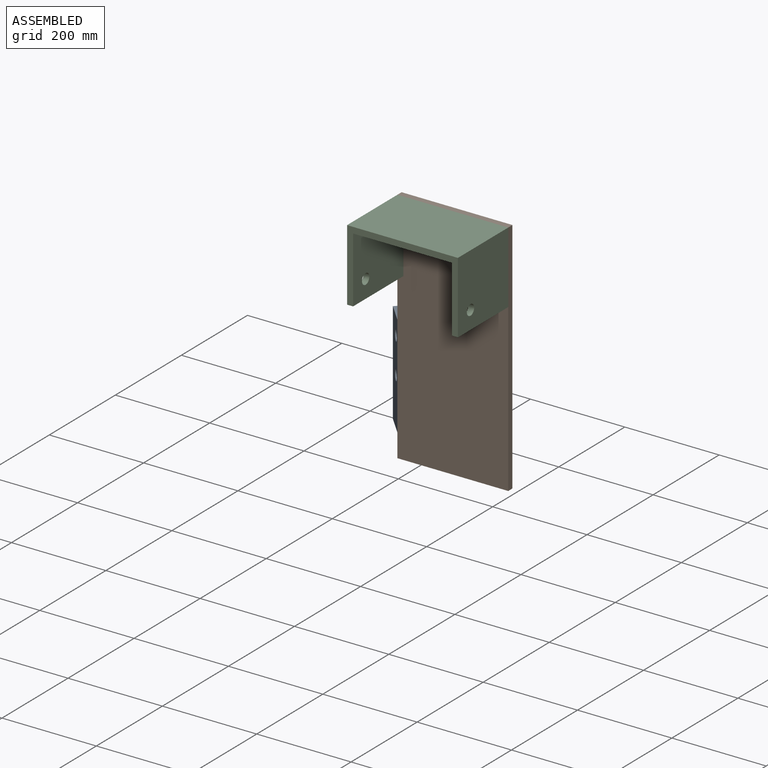
[diagram: assembled view]
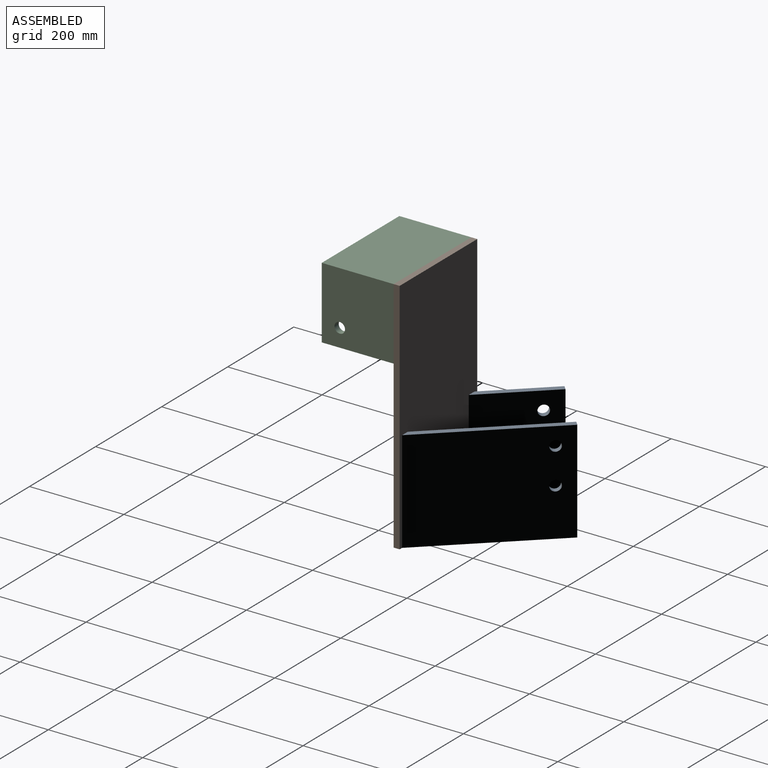
[diagram: assembled view, second angle]
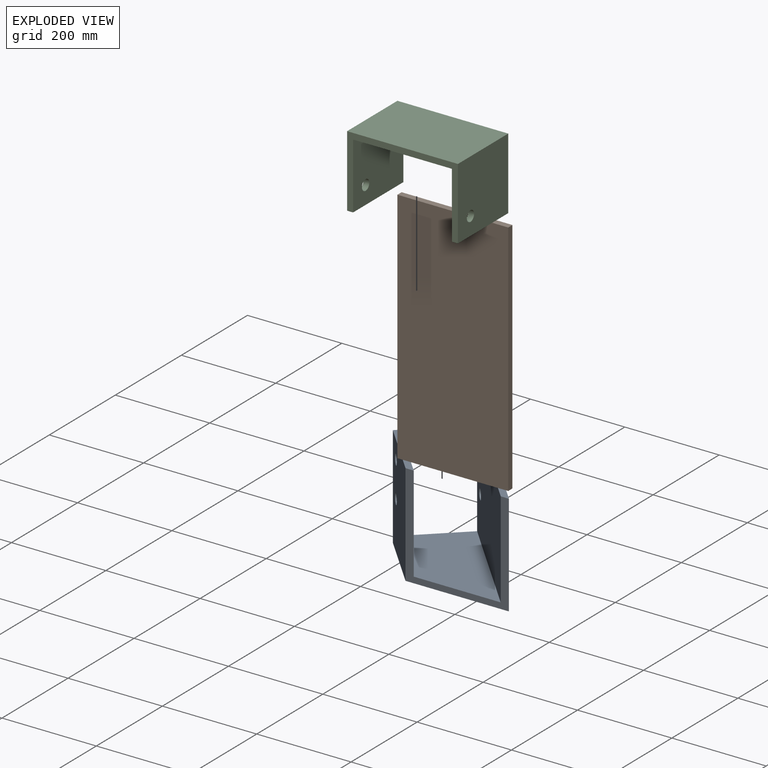
[diagram: exploded view]
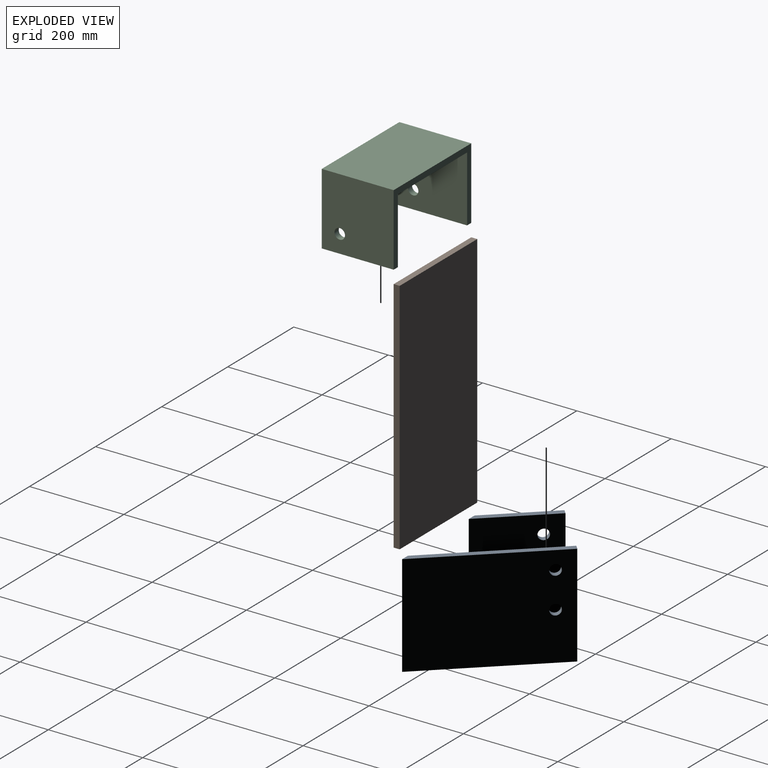
[diagram: exploded view, second angle]
ASSEMBLY  parts=3 mates=5
PART A: 14 faces, bbox 160.3x307.3x215.9 mm
  f0: plane 215.9x157.75mm, normal (-1,0,0), area 33281.6mm2, adj f2,f3,f8,f9,f12,f13
  f1: plane 203.2x169.59mm, normal (1,0,0), area 33684.7mm2, adj f2,f7,f8,f9,f12,f13
  f2: plane 169.59x12.7mm, normal (0,0,1), area 2078.6mm2, adj f0,f1,f8,f9
  f3: plane 307.26x160.34mm, normal (0,0,-1), area 37279.3mm2, adj f0,f4,f8,f9
  f4: plane 307.26x215.9mm, normal (1,0,0), area 65562.4mm2, adj f3,f5,f8,f9,f10,f11
  f5: plane 307.26x12.7mm, normal (0,0,1), area 3827mm2, adj f4,f6,f8,f9
  f6: plane 295.42x203.2mm, normal (-1,0,0), area 59253.6mm2, adj f5,f7,f8,f9,f10,f11
  f7: plane 295.42x134.94mm, normal (0,0,1), area 31373.7mm2, adj f1,f6,f8,f9
  f8: plane 215.9x160.34mm, normal (0,1,0), area 7197.6mm2, adj f0,f1,f2,f3,f4,f5,f6,f7
  f9: plane 215.9x160.34mm, normal (-0.68,-0.73,0), area 9841.4mm2, adj f0,f1,f2,f3,f4,f5,f6,f7
  f10: cylinder r=11.11mm len=22.23mm, axis (-1,0,0), area 886.7mm2, adj f4,f6
  f11: cylinder r=11.11mm len=22.23mm, axis (-1,0,0), area 886.7mm2, adj f4,f6
  f12: cylinder r=11.11mm len=22.23mm, axis (-1,0,0), area 886.7mm2, adj f0,f1
  f13: cylinder r=11.11mm len=22.23mm, axis (-1,0,0), area 886.7mm2, adj f0,f1
PART B: 6 faces, bbox 235x12.7x504.8 mm
  f0: plane 234.95x12.7mm, normal (0,0,1), area 2983.9mm2, adj f1,f3,f4,f5
  f1: plane 504.83x12.7mm, normal (-1,0,0), area 6411.3mm2, adj f0,f2,f4,f5
  f2: plane 234.95x12.7mm, normal (0,0,-1), area 2983.9mm2, adj f1,f3,f4,f5
  f3: plane 504.83x12.7mm, normal (1,0,0), area 6411.3mm2, adj f0,f2,f4,f5
  f4: plane 504.83x234.95mm, normal (0,-1,0), area 118608.6mm2, adj f0,f1,f2,f3
  f5: plane 504.83x234.95mm, normal (0,1,0), area 118608.6mm2, adj f0,f1,f2,f3
PART C: 12 faces, bbox 235x152.4x152.4 mm
  f0: plane 234.95x152.4mm, normal (0,0,1), area 35806.4mm2, adj f1,f7,f8,f9
  f1: plane 152.4x152.4mm, normal (-1,0,0), area 22837.8mm2, adj f0,f2,f8,f9,f11
  f2: plane 152.4x12.7mm, normal (0,0,-1), area 1935.5mm2, adj f1,f3,f8,f9
  f3: plane 152.4x139.7mm, normal (1,0,0), area 20902.3mm2, adj f2,f4,f8,f9,f11
  f4: plane 209.55x152.4mm, normal (0,0,-1), area 31935.4mm2, adj f3,f5,f8,f9
  f5: plane 152.4x139.7mm, normal (-1,0,0), area 20902.3mm2, adj f4,f6,f8,f9,f10
  f6: plane 152.4x12.7mm, normal (0,0,-1), area 1935.5mm2, adj f5,f7,f8,f9
  f7: plane 152.4x152.4mm, normal (1,0,0), area 22837.8mm2, adj f0,f6,f8,f9,f10
  f8: plane 234.95x152.4mm, normal (0,-1,0), area 6532.2mm2, adj f0,f1,f2,f3,f4,f5,f6,f7
  f9: plane 234.95x152.4mm, normal (0,1,0), area 6532.2mm2, adj f0,f1,f2,f3,f4,f5,f6,f7
  f10: cylinder r=11.11mm len=22.23mm, axis (1,0,0), area 886.7mm2, adj f5,f7
  f11: cylinder r=11.11mm len=22.23mm, axis (1,0,0), area 886.7mm2, adj f1,f3
PLACE A rot(axis=(0,0,1),43deg) t=(-53.63,64.59,-115.51)mm
PLACE B t=(-0.28,0.56,28.95)mm fixed
PLACE C t=(-0.28,-81.99,205.16)mm
MATE planar C.f0 <-> B.f0  axis (0,0,1) through (-0.28,-81.99,281.36)mm
MATE planar C.f1 <-> B.f1  axis (-1,0,0) through (-117.75,-81.34,205.81)mm
MATE planar A.f3 <-> B.f2  axis (0,0,-1) through (-70.11,94.86,-223.46)mm
MATE planar A.f9 <-> B.f5  axis (0,-1,0) through (-100.77,6.91,-7.56)mm
MATE planar B.f4 <-> C.f9  axis (0,-1,0) through (-0.28,-5.79,28.95)mm
